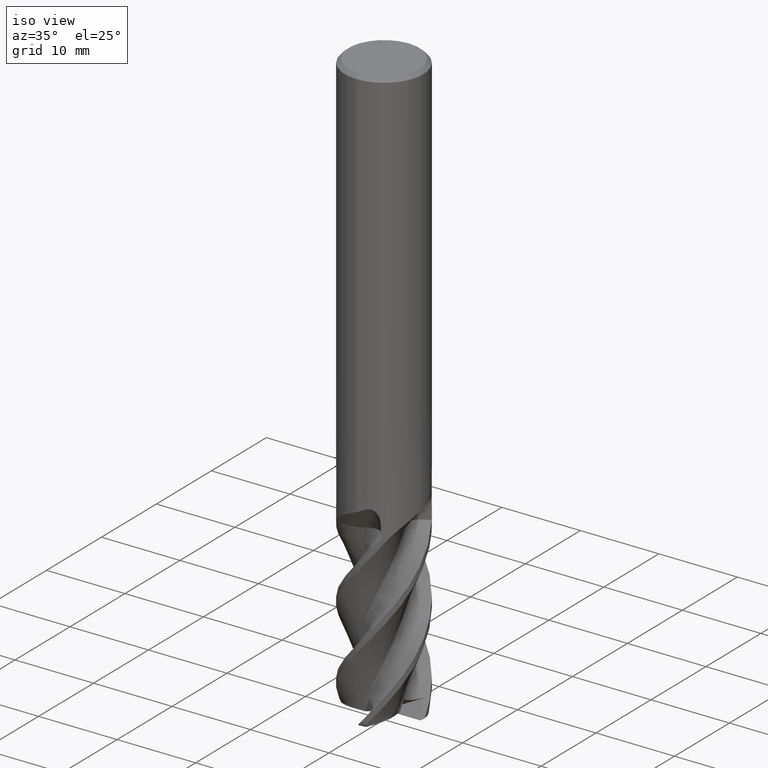
[diagram: clean part render]
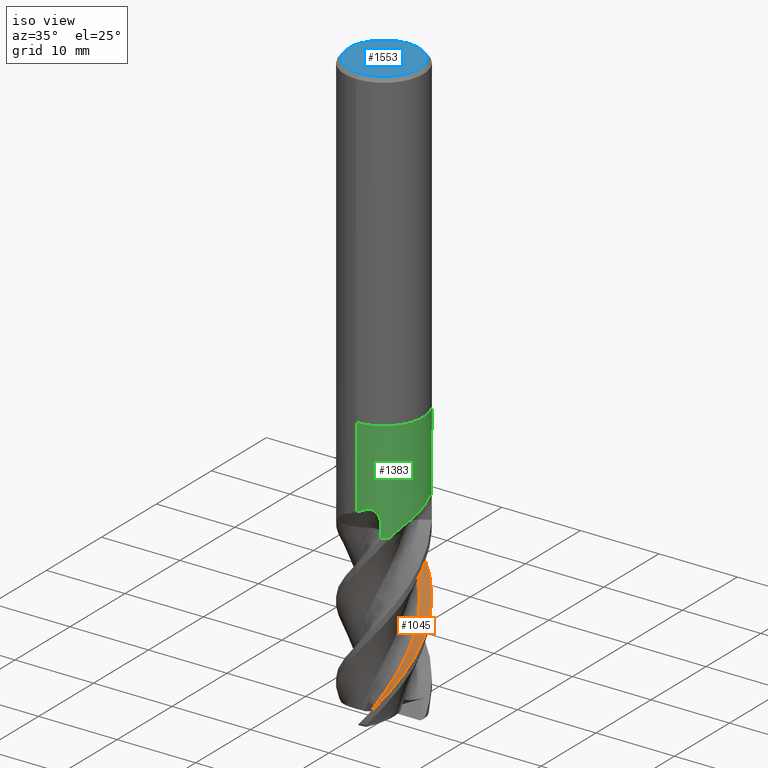
[diagram: same view with three faces highlighted in distinct colors, each labeled with its STEP entity id]
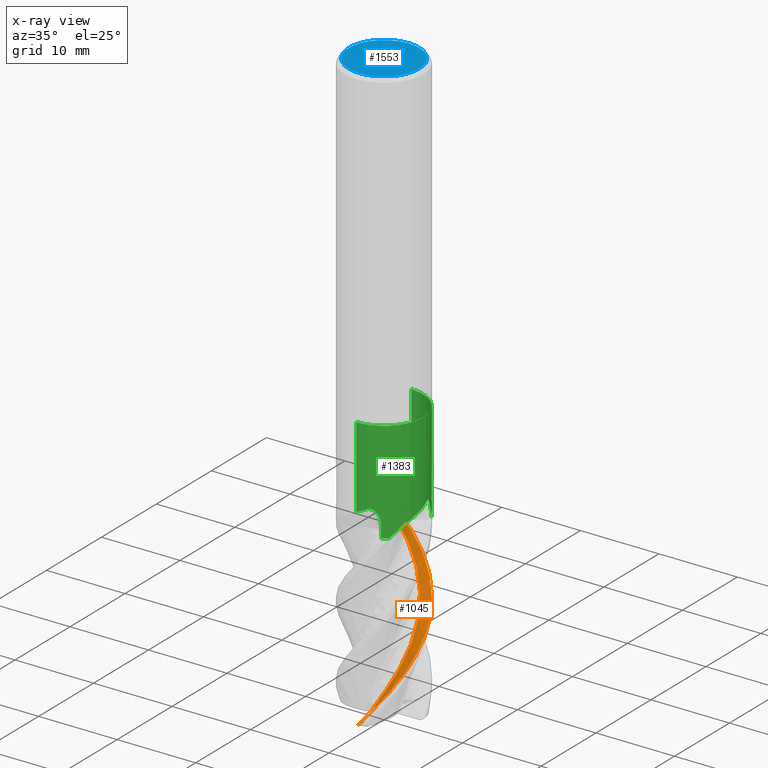
[diagram: x-ray of the same camera — body ghosted, the three highlighted faces saturated]
A machine part, iso view with three faces highlighted in distinct colors.
The next image is the same camera in x-ray (body ghosted, the three faces saturated) — at least one of them is partly hidden behind the body in this view.
Their STEP definitions:

[orange] entity #1045 — the highlighted face is a freeform B-spline surface patch.
#571=EDGE_CURVE('',#819,#1377,#1607,.T.);
#695=VERTEX_POINT('',#1743);
#805=EDGE_CURVE('',#1115,#1337,#1864,.T.);
#819=VERTEX_POINT('',#1879);
#1045=ADVANCED_FACE('',(#2122),#2123,.T.);
#1077=VERTEX_POINT('',#2157);
#1115=VERTEX_POINT('',#2200);
#1117=EDGE_CURVE('',#1077,#1227,#2202,.T.);
#1227=VERTEX_POINT('',#2323);
#1301=EDGE_CURVE('',#1377,#695,#2405,.T.);
#1335=EDGE_CURVE('',#1227,#1115,#2442,.T.);
#1337=VERTEX_POINT('',#2444);
#1345=EDGE_CURVE('',#695,#1077,#2453,.T.);
#1377=VERTEX_POINT('',#2490);
#1451=EDGE_CURVE('',#1337,#819,#2573,.T.);
#1607=B_SPLINE_CURVE_WITH_KNOTS('',3,(#2935,#2936,#2937,#2938,#2939,#2940,#2941,#2942,#2943,#2944,#2945,#2946,#2947,#2948,#2949,#2950,#2951,#2952,#2953,#2954,#2955,#2956,#2957,#2958,#2959,#2960,#2961,#2962),.UNSPECIFIED.,.F.,.F.,(4,2,2,2,2,2,2,2,2,2,2,2,2,4),(0.0,0.802464869928728,1.11938100992949,1.52797116992941,2.34566160782041,2.82971471964116,3.17506634876452,3.5338277225619,4.08483125597154,4.86498913264828,8.04766904622848,13.3982631118401,14.9423089234208,16.1421387048857),.UNSPECIFIED.);
#1743=CARTESIAN_POINT('',(1.09334985087204,-3.60114669389617,-73.2244277868559));
#1864=B_SPLINE_CURVE_WITH_KNOTS('',3,(#5759,#5760,#5761,#5762,#5763,#5764,#5765,#5766,#5767,#5768,#5769,#5770,#5771,#5772,#5773,#5774,#5775,#5776,#5777,#5778,#5779,#5780,#5781,#5782,#5783,#5784,#5785,#5786,#5787,#5788,#5789,#5790,#5791,#5792,#5793,#5794,#5795,#5796),.UNSPECIFIED.,.F.,.F.,(4,2,2,2,2,2,2,2,2,2,2,2,2,2,2,2,2,2,4),(0.0,1.53665826045563,3.87264489093354,5.42220092887918,6.57588778139974,7.14835599021829,8.50953464919352,10.1521016370915,11.1640692522027,12.2679027093545,13.4068357601413,14.533160918124,16.745752196556,18.2200064706984,19.9220789200724,21.1392875936082,22.6103454210462,24.0001062292641,28.0142336242659),.UNSPECIFIED.);
#1879=CARTESIAN_POINT('',(0.024141614388985,-4.70814144559675,-74.9545892313716));
#2122=FACE_OUTER_BOUND('',#7057,.T.);
#2123=B_SPLINE_SURFACE_WITH_KNOTS('',3,3,((#7058,#7059,#7060,#7061,#7062,#7063,#7064,#7065,#7066,#7067,#7068,#7069,#7070,#7071,#7072,#7073,#7074,#7075,#7076,#7077,#7078,#7079,#7080,#7081,#7082,#7083,#7084,#7085,#7086,#7087,#7088,#7089,#7090,#7091,#7092,#7093,#7094,#7095,#7096,#7097,#7098,#7099,#7100,#7101,#7102,#7103,#7104,#7105,#7106,#7107,#7108,#7109,#7110),(#7111,#7112,#7113,#7114,#7115,#7116,#7117,#7118,#7119,#7120,#7121,#7122,#7123,#7124,#7125,#7126,#7127,#7128,#7129,#7130,#7131,#7132,#7133,#7134,#7135,#7136,#7137,#7138,#7139,#7140,#7141,#7142,#7143,#7144,#7145,#7146,#7147,#7148,#7149,#7150,#7151,#7152,#7153,#7154,#7155,#7156,#7157,#7158,#7159,#7160,#7161,#7162,#7163),(#7164,#7165,#7166,#7167,#7168,#7169,#7170,#7171,#7172,#7173,#7174,#7175,#7176,#7177,#7178,#7179,#7180,#7181,#7182,#7183,#7184,#7185,#7186,#7187,#7188,#7189,#7190,#7191,#7192,#7193,#7194,#7195,#7196,#7197,#7198,#7199,#7200,#7201,#7202,#7203,#7204,#7205,#7206,#7207,#7208,#7209,#7210,#7211,#7212,#7213,#7214,#7215,#7216),(#7217,#7218,#7219,#7220,#7221,#7222,#7223,#7224,#7225,#7226,#7227,#7228,#7229,#7230,#7231,#7232,#7233,#7234,#7235,#7236,#7237,#7238,#7239,#7240,#7241,#7242,#7243,#7244,#7245,#7246,#7247,#7248,#7249,#7250,#7251,#7252,#7253,#7254,#7255,#7256,#7257,#7258,#7259,#7260,#7261,#7262,#7263,#7264,#7265,#7266,#7267,#7268,#7269)),.UNSPECIFIED.,.F.,.F.,.F.,(4,4),(4,1,2,1,2,1,2,1,2,1,2,1,2,1,2,1,2,1,2,1,2,1,2,1,2,1,2,1,2,1,2,1,2,1,4),(0.0,1.4375),(0.0,0.658549239123413,1.31709847824683,1.97564771737024,2.63419695649365,3.95129543474048,5.2683939129873,6.58549239123413,7.90259086948096,9.21968934772778,10.5367878259746,11.8538863042214,13.1709847824683,14.4880832607151,15.8051817389619,17.1222802172087,18.4393786954556,19.7564771737024,21.0735756519492,22.390674130196,23.7077726084429,25.0248710866897,26.3419695649365,27.6590680431833,28.9761665214302,30.293264999677,31.6103634779238,32.9274619561707,34.2445604344175,35.5616589126643,36.8787573909111,38.195855869158,39.5129543474048,40.8300528256516,42.1471513038984),.UNSPECIFIED.);
#2157=CARTESIAN_POINT('',(-1.96059927409612,3.21236791552506,-53.0));
#2200=CARTESIAN_POINT('',(-7.63272073956158E-010,4.99991520634825,-56.2693648741745));
#2202=B_SPLINE_CURVE_WITH_KNOTS('',3,(#7747,#7748,#7749,#7750,#7751,#7752),.UNSPECIFIED.,.F.,.F.,(4,2,4),(0.0,0.718749972684841,1.43749994537414),.UNSPECIFIED.);
#2323=CARTESIAN_POINT('',(-2.61261439095677,4.26300903754209,-53.0));
#2405=B_SPLINE_CURVE_WITH_KNOTS('',3,(#8956,#8957,#8958,#8959,#8960,#8961),.UNSPECIFIED.,.F.,.F.,(4,2,4),(0.0,0.752535492609384,1.51115268182924),.UNSPECIFIED.);
#2442=B_SPLINE_CURVE_WITH_KNOTS('',3,(#9046,#9047,#9048,#9049,#9050,#9051,#9052,#9053,#9054,#9055,#9056,#9057,#9058,#9059,#9060,#9061,#9062,#9063,#9064,#9065,#9066,#9067,#9068,#9069,#9070,#9071,#9072,#9073,#9074,#9075,#9076,#9077,#9078,#9079,#9080,#9081,#9082,#9083),.UNSPECIFIED.,.F.,.F.,(4,2,2,2,2,2,2,2,2,2,2,2,2,2,2,2,2,2,4),(0.0,1.53665826045563,3.87264489093354,5.42220092887918,6.57588778139974,7.14835599021829,8.50953464919352,10.1521016370915,11.1640692522027,12.2679027093545,13.4068357601413,14.533160918124,16.745752196556,18.2200064706984,19.9220789200724,21.1392875936082,22.6103454210462,24.0001062292641,28.0142336242659),.UNSPECIFIED.);
#2444=CARTESIAN_POINT('',(0.412223760012419,-4.98297818294253,-74.5));
#2453=B_SPLINE_CURVE_WITH_KNOTS('',3,(#9098,#9099,#9100,#9101,#9102,#9103,#9104,#9105,#9106,#9107,#9108,#9109,#9110,#9111,#9112,#9113,#9114,#9115,#9116,#9117,#9118,#9119,#9120,#9121,#9122,#9123,#9124,#9125,#9126,#9127,#9128,#9129,#9130,#9131,#9132,#9133,#9134,#9135,#9136,#9137,#9138,#9139,#9140,#9141,#9142,#9143,#9144,#9145,#9146,#9147,#9148,#9149,#9150),.UNSPECIFIED.,.F.,.F.,(4,1,2,1,2,1,2,1,2,1,2,1,2,1,2,1,2,1,2,1,2,1,2,1,2,1,2,1,2,1,2,1,2,1,4),(0.0,0.658549239123413,1.31709847824683,1.97564771737024,2.63419695649365,3.95129543474048,5.2683939129873,6.58549239123413,7.90259086948096,9.21968934772778,10.5367878259746,11.8538863042214,13.1709847824683,14.4880832607151,15.8051817389619,17.1222802172087,18.4393786954556,19.7564771737024,21.0735756519492,22.390674130196,23.7077726084429,25.0248710866897,26.3419695649365,27.6590680431833,28.9761665214302,30.293264999677,31.6103634779238,32.9274619561707,34.2445604344175,35.5616589126643,36.8787573909111,38.195855869158,39.5129543474048,40.8300528256516,42.1471513038984),.UNSPECIFIED.);
#2490=CARTESIAN_POINT('',(1.41002267526632,-4.17503026798834,-73.0449553888539));
#2573=B_SPLINE_CURVE_WITH_KNOTS('',3,(#10734,#10735,#10736,#10737,#10738,#10739,#10740,#10741,#10742,#10743,#10744,#10745,#10746,#10747,#10748,#10749,#10750,#10751),.UNSPECIFIED.,.F.,.F.,(4,2,2,2,2,2,2,2,4),(0.0,0.0174020930353364,0.0419531873788558,0.101700827697184,0.183222088222866,0.37615105162832,0.574353302947246,0.719854679735566,0.844578434641358),.UNSPECIFIED.);
#2935=CARTESIAN_POINT('',(-0.00472035842892563,-5.10275069122379,-74.9933713526036));
#2936=CARTESIAN_POINT('',(0.00535645009950015,-4.8357787814273,-74.9801636811999));
#2937=CARTESIAN_POINT('',(0.0206690984315288,-4.68668840237219,-74.9594327544668));
#2938=CARTESIAN_POINT('',(0.0585715148401548,-4.55182096468247,-74.9075159334549));
#2939=CARTESIAN_POINT('',(0.0715194129029534,-4.52045672959237,-74.8897426873791));
#2940=CARTESIAN_POINT('',(0.108306295393729,-4.45953595652643,-74.8391737042271));
#2941=CARTESIAN_POINT('',(0.134518612741419,-4.43265274517147,-74.8030984699196));
#2942=CARTESIAN_POINT('',(0.237225902721907,-4.36369734472078,-74.6616518093504));
#2943=CARTESIAN_POINT('',(0.335005147038249,-4.33522233674745,-74.5268962630077));
#2944=CARTESIAN_POINT('',(0.406076989153602,-4.31613947275755,-74.4289436615394));
#2945=CARTESIAN_POINT('',(0.433368397389877,-4.31033959019131,-74.3913261757435));
#2946=CARTESIAN_POINT('',(0.478758805701372,-4.30200500740753,-74.3287583086945));
#2947=CARTESIAN_POINT('',(0.497917030367789,-4.29888933415062,-74.3023488469668));
#2948=CARTESIAN_POINT('',(0.536469457662126,-4.29312937411834,-74.2492033173086));
#2949=CARTESIAN_POINT('',(0.556382653751952,-4.29042823475236,-74.2217517500489));
#2950=CARTESIAN_POINT('',(0.606154886667106,-4.28408798630442,-74.1531366029856));
#2951=CARTESIAN_POINT('',(0.637477813199322,-4.28049138500143,-74.1099543403774));
#2952=CARTESIAN_POINT('',(0.70949363215307,-4.27254685415256,-74.0106714021475));
#2953=CARTESIAN_POINT('',(0.751404849139457,-4.26819017044134,-73.9528907881337));
#2954=CARTESIAN_POINT('',(0.990124001773409,-4.24275370389677,-73.6237838535048));
#2955=CARTESIAN_POINT('',(1.12832757000791,-4.22626493635328,-73.4332559094142));
#2956=CARTESIAN_POINT('',(1.62650787680902,-4.13730486988278,-72.7465387292871));
#2957=CARTESIAN_POINT('',(1.92472707912048,-4.05494378321267,-72.3355330908659));
#2958=CARTESIAN_POINT('',(2.31403225659556,-3.90174346411444,-71.7991103988103));
#2959=CARTESIAN_POINT('',(2.4586612968122,-3.84288734792769,-71.5998313813132));
#2960=CARTESIAN_POINT('',(2.68228506577451,-3.74804418042606,-71.2917183299254));
#2961=CARTESIAN_POINT('',(2.7788381412528,-3.70559431006753,-71.1586895409081));
#2962=CARTESIAN_POINT('',(2.87588257191283,-3.6607514740224,-71.024989377869));
#5759=CARTESIAN_POINT('',(-2.61261439095677,4.2630090375421,-53.0));
#5760=CARTESIAN_POINT('',(-2.33165636246581,4.43519823574182,-53.3921507371286));
#5761=CARTESIAN_POINT('',(-2.03668507768344,4.57817058520221,-53.7713860965599));
#5762=CARTESIAN_POINT('',(-1.25696426025036,4.86521445046569,-54.7639852846721));
#5763=CARTESIAN_POINT('',(-0.761020258849193,4.96747725170689,-55.3732637028572));
#5764=CARTESIAN_POINT('',(0.0792577708990447,5.01053527213815,-56.3639769994125));
#5765=CARTESIAN_POINT('',(0.41681515809505,4.99411159389857,-56.761505621951));
#5766=CARTESIAN_POINT('',(1.00346835227384,4.90473242505584,-57.4745018414592));
#5767=CARTESIAN_POINT('',(1.25101359925282,4.84755287033153,-57.780078817511));
#5768=CARTESIAN_POINT('',(1.61388379256263,4.73397549203851,-58.2343456620856));
#5769=CARTESIAN_POINT('',(1.73319567871613,4.69163291706898,-58.3847751129417));
#5770=CARTESIAN_POINT('',(2.13177311338149,4.53277461343065,-58.8910384232557));
#5771=CARTESIAN_POINT('',(2.40158264162353,4.39597726921788,-59.2448257255492));
#5772=CARTESIAN_POINT('',(2.97120113550842,4.03814405305286,-60.0512856756961));
#5773=CARTESIAN_POINT('',(3.2610340046304,3.80812829038278,-60.4964422480917));
#5774=CARTESIAN_POINT('',(3.68518289571345,3.38684907947514,-61.2066987396964));
#5775=CARTESIAN_POINT('',(3.834175028123,3.21718688259587,-61.4688170431235));
#5776=CARTESIAN_POINT('',(4.12314214095255,2.8391452085361,-62.0329354376779));
#5777=CARTESIAN_POINT('',(4.25834408815773,2.63182582123811,-62.3295138871987));
#5778=CARTESIAN_POINT('',(4.50000326730141,2.19406316666077,-62.9309375386488));
#5779=CARTESIAN_POINT('',(4.60604942296498,1.96193431988415,-63.2372412091144));
#5780=CARTESIAN_POINT('',(4.78121425769737,1.48440423894692,-63.8418692664301));
#5781=CARTESIAN_POINT('',(4.84960938958754,1.24287033349411,-64.13295073194));
#5782=CARTESIAN_POINT('',(4.99877711190631,0.508383945602098,-65.0232624046795));
#5783=CARTESIAN_POINT('',(5.02457768218559,0.00966579170736898,-65.624853073573));
#5784=CARTESIAN_POINT('',(4.94429220866736,-0.814380199782096,-66.6077206293091));
#5785=CARTESIAN_POINT('',(4.88007473229703,-1.13775371544518,-66.9899840780349));
#5786=CARTESIAN_POINT('',(4.67216971873615,-1.82128906452946,-67.8451539720354));
#5787=CARTESIAN_POINT('',(4.51884643943845,-2.17426592021935,-68.3084068699948));
#5788=CARTESIAN_POINT('',(4.18838264770752,-2.7445823012463,-69.0925566712788));
#5789=CARTESIAN_POINT('',(4.03252605673041,-2.96884355878419,-69.4090164861885));
#5790=CARTESIAN_POINT('',(3.64637245516485,-3.43716322621835,-70.13112527989));
#5791=CARTESIAN_POINT('',(3.41061968908987,-3.67105507981146,-70.5305048620696));
#5792=CARTESIAN_POINT('',(2.91209205452974,-4.0763950041937,-71.3015618493022));
#5793=CARTESIAN_POINT('',(2.65462735749539,-4.24823165058976,-71.6651719416601));
#5794=CARTESIAN_POINT('',(1.60312627302862,-4.81866700943714,-73.0733893459933));
#5795=CARTESIAN_POINT('',(0.881506358171893,-4.94415355877029,-73.9488221503779));
#5796=CARTESIAN_POINT('',(0.412223760012399,-4.98297818294253,-74.5));
#7057=EDGE_LOOP('',(#11690,#11691,#11692,#11693,#11694,#11695,#11696));
#7058=CARTESIAN_POINT('',(-3.75846504509034,0.174203199838718,-85.0));
#7059=CARTESIAN_POINT('',(-3.75922417421834,0.180367674065086,-84.781257534348));
#7060=CARTESIAN_POINT('',(-3.76659625728186,0.101343983606238,-84.3437017067897));
#7061=CARTESIAN_POINT('',(-3.76514038195602,-0.166872443605937,-83.9061227876956));
#7062=CARTESIAN_POINT('',(-3.73059290486704,-0.525748748428011,-83.4686790293266));
#7063=CARTESIAN_POINT('',(-3.67418562139574,-0.853419521970376,-83.0312599785651));
#7064=CARTESIAN_POINT('',(-3.59371181485703,-1.12390867607199,-82.5937922235727));
#7065=CARTESIAN_POINT('',(-3.46384525794051,-1.4950883686463,-81.9374991454801));
#7066=CARTESIAN_POINT('',(-3.23939255563683,-1.97184736336328,-81.0624396209969));
#7067=CARTESIAN_POINT('',(-2.90400512147148,-2.41104012653563,-80.1874068062779));
#7068=CARTESIAN_POINT('',(-2.50649264273974,-2.82167058894835,-79.3124420205515));
#7069=CARTESIAN_POINT('',(-2.07729339401847,-3.17357801084494,-78.4374849235529));
#7070=CARTESIAN_POINT('',(-1.58763876126148,-3.42370937664237,-77.5624771201042));
#7071=CARTESIAN_POINT('',(-1.06179339490174,-3.62139719687097,-76.6874636115176));
#7072=CARTESIAN_POINT('',(-0.528045233448861,-3.75603481942354,-75.812465434062));
#7073=CARTESIAN_POINT('',(0.0227563813656532,-3.77389672882558,-74.9374521777107));
#7074=CARTESIAN_POINT('',(0.583877475829847,-3.72844242989575,-74.0624554440398));
#7075=CARTESIAN_POINT('',(1.12416091123712,-3.62250415170346,-73.1874694992783));
#7076=CARTESIAN_POINT('',(1.6296094558791,-3.40400478488374,-72.3124569222773));
#7077=CARTESIAN_POINT('',(2.11788147378342,-3.12358907735593,-71.4374554871685));
#7078=CARTESIAN_POINT('',(2.56162684897544,-2.79723400781252,-70.5624665057969));
#7079=CARTESIAN_POINT('',(2.92567780542057,-2.38395213516687,-69.6874539774133));
#7080=CARTESIAN_POINT('',(3.24765439714162,-1.92222254599876,-68.8124536161666));
#7081=CARTESIAN_POINT('',(3.50980338631336,-1.43794004700814,-67.9374652209009));
#7082=CARTESIAN_POINT('',(3.66288554473263,-0.908908693690412,-67.0624526373256));
#7083=CARTESIAN_POINT('',(3.7572548754571,-0.353901504644488,-66.1874521349676));
#7084=CARTESIAN_POINT('',(3.78787536080733,0.195986430818265,-65.3124636790001));
#7085=CARTESIAN_POINT('',(3.70074520136158,0.739810773490634,-64.4374510978889));
#7086=CARTESIAN_POINT('',(3.54943330717654,1.28207916648504,-63.5624505838951));
#7087=CARTESIAN_POINT('',(3.34264164734698,1.79252633150535,-62.6874621329593));
#7088=CARTESIAN_POINT('',(3.03193515617853,2.24726530466125,-61.812449551569));
#7089=CARTESIAN_POINT('',(2.66384433904996,2.67322628119352,-60.9374490151771));
#7090=CARTESIAN_POINT('',(2.25913979001121,3.04675106383931,-60.0624605524643));
#7091=CARTESIAN_POINT('',(1.7841972408782,3.32557940568417,-59.1874479820501));
#7092=CARTESIAN_POINT('',(1.26962301403457,3.55390890141466,-58.3124474617861));
#7093=CARTESIAN_POINT('',(0.744294017262821,3.71919688364569,-57.4374589866491));
#7094=CARTESIAN_POINT('',(0.195814907548146,3.76888495198788,-56.5624463791087));
#7095=CARTESIAN_POINT('',(-0.3669814263455,3.75599902672818,-55.6874458281175));
#7096=CARTESIAN_POINT('',(-0.912657474333065,3.68150497458839,-54.8124574190731));
#7097=CARTESIAN_POINT('',(-1.43001184013111,3.49254974209404,-53.9374450757006));
#7098=CARTESIAN_POINT('',(-1.93362453146801,3.24088011025482,-53.062444859215));
#7099=CARTESIAN_POINT('',(-2.39540700204253,2.94081705330688,-52.1874561530901));
#7100=CARTESIAN_POINT('',(-2.78278411138902,2.54930803172176,-51.3124425858655));
#7101=CARTESIAN_POINT('',(-3.13104106316721,2.10684892960255,-50.4374410272082));
#7102=CARTESIAN_POINT('',(-3.42082265908543,1.63839330800024,-49.5624537630285));
#7103=CARTESIAN_POINT('',(-3.60409016620524,1.11945713391387,-48.6874443570381));
#7104=CARTESIAN_POINT('',(-3.73030487993103,0.571684806413347,-47.8124462662842));
#7105=CARTESIAN_POINT('',(-3.79294591409001,0.0247414561718516,-46.93745257227));
#7106=CARTESIAN_POINT('',(-3.737295678972,-0.525697689521288,-46.0624311257765));
#7107=CARTESIAN_POINT('',(-3.61626740834633,-1.07977270751138,-45.1874270825496));
#7108=CARTESIAN_POINT('',(-3.43806007054787,-1.60075189270756,-44.312455744063));
#7109=CARTESIAN_POINT('',(-3.15984968324221,-2.06271643304369,-43.4374654493909));
#7110=CARTESIAN_POINT('',(-2.99429631359394,-2.27997981095106,-42.9999677084396));
#7111=CARTESIAN_POINT('',(-4.23711784707065,0.19638854644076,-85.0));
#7112=CARTESIAN_POINT('',(-4.23794062249673,0.201179436900481,-84.7812578435563));
#7113=CARTESIAN_POINT('',(-4.2460803331588,0.109138485951662,-84.3436956172635));
#7114=CARTESIAN_POINT('',(-4.24409664395781,-0.193327536128675,-83.9061084096885));
#7115=CARTESIAN_POINT('',(-4.20501621095374,-0.596608487421843,-83.4686713030371));
#7116=CARTESIAN_POINT('',(-4.14133336875902,-0.965139550146092,-83.0312614327978));
#7117=CARTESIAN_POINT('',(-4.05039477232848,-1.2699353405888,-82.593797188511));
#7118=CARTESIAN_POINT('',(-3.90350369126888,-1.68855678255918,-81.9374991356436));
#7119=CARTESIAN_POINT('',(-3.64979057359648,-2.22617465845186,-81.0624329669593));
#7120=CARTESIAN_POINT('',(-3.27124082255499,-2.72096248702242,-80.1873966213073));
#7121=CARTESIAN_POINT('',(-2.8229456855589,-3.18329307355221,-79.3124359088237));
#7122=CARTESIAN_POINT('',(-2.33876520563161,-3.57961531433789,-78.4374836863296));
#7123=CARTESIAN_POINT('',(-1.78643198263717,-3.86115252371355,-77.5624750778767));
#7124=CARTESIAN_POINT('',(-1.19357490180921,-4.08346676609695,-76.6874600371529));
#7125=CARTESIAN_POINT('',(-0.591661945200606,-4.23475933658083,-75.8124621678272));
#7126=CARTESIAN_POINT('',(0.0293539718017339,-4.25435091386449,-74.9374474585254));
#7127=CARTESIAN_POINT('',(0.661717076025444,-4.20259451894905,-74.0624511732849));
#7128=CARTESIAN_POINT('',(1.27076776870874,-4.08264084143962,-73.1874668415858));
#7129=CARTESIAN_POINT('',(1.8404244927543,-3.83578859567452,-72.3124529454844));
#7130=CARTESIAN_POINT('',(2.39046290166253,-3.5192897894259,-71.4374513608987));
#7131=CARTESIAN_POINT('',(2.89045843706128,-3.15091750442883,-70.5624636868881));
#7132=CARTESIAN_POINT('',(3.30049999199704,-2.68459799854828,-69.6874498669029));
#7133=CARTESIAN_POINT('',(3.66294730107358,-2.16390584601138,-68.8124494309178));
#7134=CARTESIAN_POINT('',(3.95805169971144,-1.61764685365583,-67.937462467379));
#7135=CARTESIAN_POINT('',(4.13011976055933,-1.0210337795758,-67.0624485052054));
#7136=CARTESIAN_POINT('',(4.23595604554261,-0.395428699556982,-66.1874480028474));
#7137=CARTESIAN_POINT('',(4.26995842287849,0.224577754726014,-65.3124608663496));
#7138=CARTESIAN_POINT('',(4.17118252300016,0.837630242419503,-64.4374470411454));
#7139=CARTESIAN_POINT('',(4.00013774215616,1.44864699290281,-63.5624463776748));
#7140=CARTESIAN_POINT('',(3.76650454704363,2.02396048706889,-62.6874593962856));
#7141=CARTESIAN_POINT('',(3.41574414228388,2.53635097742908,-61.8124454193211));
#7142=CARTESIAN_POINT('',(3.0004897367626,3.01608068355262,-60.9374448829292));
#7143=CARTESIAN_POINT('',(2.54384700627362,3.43683211333534,-60.0624577728718));
#7144=CARTESIAN_POINT('',(2.00809197730894,3.75072755584757,-59.1874438486276));
#7145=CARTESIAN_POINT('',(1.42793033979699,4.0075806197935,-58.3124433283636));
#7146=CARTESIAN_POINT('',(0.835485250934674,4.19343877987961,-57.4374562107932));
#7147=CARTESIAN_POINT('',(0.217048263522084,4.24891507095894,-56.5624422380938));
#7148=CARTESIAN_POINT('',(-0.417235052790672,4.23386274405219,-55.6874416871025));
#7149=CARTESIAN_POINT('',(-1.0323931120071,4.14935657166442,-54.8124546158436));
#7150=CARTESIAN_POINT('',(-1.61550042548027,3.93580356847772,-53.9374409812958));
#7151=CARTESIAN_POINT('',(-2.18285611535051,3.65168784615569,-53.0624407648102));
#7152=CARTESIAN_POINT('',(-2.70321437719236,3.31294038170613,-52.1874534856649));
#7153=CARTESIAN_POINT('',(-3.13957659328799,2.87114554906663,-51.3124383108592));
#7154=CARTESIAN_POINT('',(-3.53165951786123,2.37214976973516,-50.4374367522019));
#7155=CARTESIAN_POINT('',(-3.85793231182018,1.84371186418283,-49.5624508019605));
#7156=CARTESIAN_POINT('',(-4.06404546948231,1.25844502955053,-48.6874403647514));
#7157=CARTESIAN_POINT('',(-4.20578176555097,0.640950116489492,-47.8124428719048));
#7158=CARTESIAN_POINT('',(-4.2758874277425,0.0242270735210278,-46.9374501805367));
#7159=CARTESIAN_POINT('',(-4.21260100126799,-0.596276659307185,-46.0624264540729));
#7160=CARTESIAN_POINT('',(-4.07569431057026,-1.22056650350317,-45.1874215139853));
#7161=CARTESIAN_POINT('',(-3.87428815248698,-1.80778168303909,-44.3124525798971));
#7162=CARTESIAN_POINT('',(-3.56006622923984,-2.32849820347486,-43.4374619688278));
#7163=CARTESIAN_POINT('',(-3.3731948992297,-2.57329969816187,-42.9999640783996));
#7164=CARTESIAN_POINT('',(-4.71577064904156,0.218573893042167,-85.0));
#7165=CARTESIAN_POINT('',(-4.71665710542029,0.221991200888954,-84.7812581528398));
#7166=CARTESIAN_POINT('',(-4.72556437008339,0.116932987910637,-84.3436895270494));
#7167=CARTESIAN_POINT('',(-4.72305294918176,-0.219782629035817,-83.9060940329823));
#7168=CARTESIAN_POINT('',(-4.67943947383023,-0.667468226029499,-83.4686635754493));
#7169=CARTESIAN_POINT('',(-4.60848114161627,-1.07685957801723,-83.0312628963867));
#7170=CARTESIAN_POINT('',(-4.50707772205947,-1.41596200609556,-82.5938021360351));
#7171=CARTESIAN_POINT('',(-4.34316214009191,-1.88202519449378,-81.9374991606195));
#7172=CARTESIAN_POINT('',(-4.06018856313164,-2.48050197044054,-81.0624262955416));
#7173=CARTESIAN_POINT('',(-3.63847656498833,-3.03088481570123,-80.1873864362814));
#7174=CARTESIAN_POINT('',(-3.13939868704092,-3.54491558996265,-79.3124297971499));
#7175=CARTESIAN_POINT('',(-2.60023703835065,-3.98565261755892,-78.4374824728006));
#7176=CARTESIAN_POINT('',(-1.98522520314841,-4.29859563953612,-77.5624729882229));
#7177=CARTESIAN_POINT('',(-1.32535640958074,-4.5455363665491,-76.6874565102081));
#7178=CARTESIAN_POINT('',(-0.655278656858653,-4.713483817499,-75.8124588822478));
#7179=CARTESIAN_POINT('',(0.0359515629158194,-4.73480514017841,-74.9374427305751));
#7180=CARTESIAN_POINT('',(0.73955667554605,-4.67674656672546,-74.0624469112759));
#7181=CARTESIAN_POINT('',(1.41737461558806,-4.54277754138188,-73.1874642134127));
#7182=CARTESIAN_POINT('',(2.05123955147943,-4.26757242732512,-72.3124489009334));
#7183=CARTESIAN_POINT('',(2.663044307699,-3.91499048063375,-71.4374473023827));
#7184=CARTESIAN_POINT('',(3.21929005200539,-3.50460100039336,-70.5624608661335));
#7185=CARTESIAN_POINT('',(3.67532214672753,-2.9852438840832,-69.6874456923335));
#7186=CARTESIAN_POINT('',(4.07824023683639,-2.40558912387084,-68.8124453097233));
#7187=CARTESIAN_POINT('',(4.40629998335957,-1.79735367144124,-67.9374596829612));
#7188=CARTESIAN_POINT('',(4.59735400403595,-1.13315886534592,-67.0624443707648));
#7189=CARTESIAN_POINT('',(4.71465718796931,-0.436955894582885,-66.1874438730549));
#7190=CARTESIAN_POINT('',(4.7520415110836,0.2531690750204,-65.3124581275866));
#7191=CARTESIAN_POINT('',(4.64161981998213,0.935449718694701,-64.4374428342929));
#7192=CARTESIAN_POINT('',(4.45084220176414,1.615214811977,-63.5624423215157));
#7193=CARTESIAN_POINT('',(4.19036743825421,2.25539466141075,-62.6874565827271));
#7194=CARTESIAN_POINT('',(3.79955312071874,2.82543661998535,-61.8124412907487));
#7195=CARTESIAN_POINT('',(3.33713514214326,3.35893511611539,-60.9374407470571));
#7196=CARTESIAN_POINT('',(2.82855422186682,3.82691310948881,-60.0624550329025));
#7197=CARTESIAN_POINT('',(2.23198670739556,4.17587578248988,-59.1874396396444));
#7198=CARTESIAN_POINT('',(1.58623767190163,4.46125226172859,-58.3124392704482));
#7199=CARTESIAN_POINT('',(0.926676485861541,4.66768072805053,-57.4374533917498));
#7200=CARTESIAN_POINT('',(0.238281610642867,4.72894516248995,-56.5624381078856));
#7201=CARTESIAN_POINT('',(-0.467488670384231,4.71172648881444,-55.6874375352761));
#7202=CARTESIAN_POINT('',(-1.15212879513545,4.61720813291981,-54.8124518527989));
#7203=CARTESIAN_POINT('',(-1.80098892877361,4.37905743907337,-53.9374368172926));
#7204=CARTESIAN_POINT('',(-2.43208778126512,4.06249553786015,-53.0624367399999));
#7205=CARTESIAN_POINT('',(-3.01102170610632,3.68506372565636,-52.1874507354319));
#7206=CARTESIAN_POINT('',(-3.49636908561116,3.19298307953199,-51.3124341321074));
#7207=CARTESIAN_POINT('',(-3.93227796214917,2.63745059675622,-50.4374323809552));
#7208=CARTESIAN_POINT('',(-4.29504195661952,2.0490304261184,-49.5624478608188));
#7209=CARTESIAN_POINT('',(-4.52400079902545,1.39743292679838,-48.6874364288002));
#7210=CARTESIAN_POINT('',(-4.68125862491925,0.710215424953804,-47.8124394212254));
#7211=CARTESIAN_POINT('',(-4.75882894563135,0.0237126869621077,-46.9374478389429));
#7212=CARTESIAN_POINT('',(-4.68790634141072,-0.666855619666438,-46.0624217381713));
#7213=CARTESIAN_POINT('',(-4.53512119495504,-1.36136030891957,-45.1874159896299));
#7214=CARTESIAN_POINT('',(-4.31051626652866,-2.01481147440483,-44.3124492866954));
#7215=CARTESIAN_POINT('',(-3.96028272887087,-2.59427996242444,-43.4374587021844));
#7216=CARTESIAN_POINT('',(-3.75209348486642,-2.86661958537718,-42.9999604483638));
#7217=CARTESIAN_POINT('',(-5.19442345102187,0.240759239644209,-85.0));
#7218=CARTESIAN_POINT('',(-5.19537357236324,0.242802964589444,-84.7812584619751));
#7219=CARTESIAN_POINT('',(-5.20504841335141,0.124727487575611,-84.3436834398954));
#7220=CARTESIAN_POINT('',(-5.20200925773682,-0.246237717062749,-83.9060796503041));
#7221=CARTESIAN_POINT('',(-5.15386273336366,-0.738327969519137,-83.468655853831));
#7222=CARTESIAN_POINT('',(-5.07562891458925,-1.1885796038369,-83.0312643482838));
#7223=CARTESIAN_POINT('',(-4.96376067486477,-1.56198867082865,-82.5938071009735));
#7224=CARTESIAN_POINT('',(-4.78282058275257,-2.0754936079741,-81.937499150783));
#7225=CARTESIAN_POINT('',(-4.47058658022619,-2.73482924686456,-81.062419641504));
#7226=CARTESIAN_POINT('',(-4.00571225846975,-3.3408072139497,-80.1873762513108));
#7227=CARTESIAN_POINT('',(-3.45585173746216,-3.90653803680484,-79.3124236854221));
#7228=CARTESIAN_POINT('',(-2.86170884616274,-4.3916899399327,-78.4374812542619));
#7229=CARTESIAN_POINT('',(-2.1840184245241,-4.7360387866073,-77.5624709086262));
#7230=CARTESIAN_POINT('',(-1.45713791648821,-5.00760593577507,-76.6874529732126));
#7231=CARTESIAN_POINT('',(-0.718895363511709,-5.19220832554029,-75.8124555786438));
#7232=CARTESIAN_POINT('',(0.0425491431545244,-5.21525934344934,-74.937438048759));
#7233=CARTESIAN_POINT('',(0.817396285939022,-5.15089863754674,-74.0624426031518));
#7234=CARTESIAN_POINT('',(1.56398147815837,-5.00291422200203,-73.1874615744047));
#7235=CARTESIAN_POINT('',(2.26205456795988,-4.69935627457992,-72.3124449241404));
#7236=CARTESIAN_POINT('',(2.93562575597286,-4.31069115623968,-71.437443176113));
#7237=CARTESIAN_POINT('',(3.54812163477627,-3.85828451079182,-70.5624580845939));
#7238=CARTESIAN_POINT('',(4.05014432353917,-3.28588975636434,-69.6874415070847));
#7239=CARTESIAN_POINT('',(4.49353315053317,-2.64727241498372,-68.8124411992129));
#7240=CARTESIAN_POINT('',(4.85454826401357,-1.97706047832482,-67.9374568920702));
#7241=CARTESIAN_POINT('',(5.064588275586,-1.24528395965927,-67.0624402386446));
#7242=CARTESIAN_POINT('',(5.19335830233148,-0.47848308106742,-66.1874397409347));
#7243=CARTESIAN_POINT('',(5.23412460069201,0.281760387714959,-65.3124553523053));
#7244=CARTESIAN_POINT('',(5.11205714226952,1.03326920162199,-64.4374387028111));
#7245=CARTESIAN_POINT('',(4.90154663609494,1.78178262439635,-63.5624381900339));
#7246=CARTESIAN_POINT('',(4.61423033827528,2.4868288239735,-62.6874538086842));
#7247=CARTESIAN_POINT('',(4.18336210682409,3.11452229275318,-61.8124371585008));
#7248=CARTESIAN_POINT('',(3.6737805398559,3.70178951847449,-60.9374366148092));
#7249=CARTESIAN_POINT('',(3.11326143454446,4.21699418253181,-60.0624522159408));
#7250=CARTESIAN_POINT('',(2.45588145099586,4.60102388555933,-59.1874355809603));
#7251=CARTESIAN_POINT('',(1.74454499049451,4.91492402720139,-58.3124350622873));
#7252=CARTESIAN_POINT('',(1.01786772938339,5.14192260979942,-57.4374506532631));
#7253=CARTESIAN_POINT('',(0.259514954086359,5.20897526333713,-56.5624339668706));
#7254=CARTESIAN_POINT('',(-0.517742284298957,5.18959022426233,-55.6874333942611));
#7255=CARTESIAN_POINT('',(-1.27186443864215,5.08505973026619,-54.8124490495694));
#7256=CARTESIAN_POINT('',(-1.98647751498786,4.82231124679249,-53.9374327228878));
#7257=CARTESIAN_POINT('',(-2.68131936428253,4.47330329242558,-53.0624326455951));
#7258=CARTESIAN_POINT('',(-3.31882908613857,4.05718704960574,-52.1874479932683));
#7259=CARTESIAN_POINT('',(-3.8531615586104,3.51482058711203,-51.3124300065779));
#7260=CARTESIAN_POINT('',(-4.33289642574292,2.90275144665366,-50.4374279564722));
#7261=CARTESIAN_POINT('',(-4.73215160495847,2.25434897625204,-49.5624448997509));
#7262=CARTESIAN_POINT('',(-4.98395610219438,1.53642082476811,-48.6874325859904));
#7263=CARTESIAN_POINT('',(-5.15673551064733,0.77948073269688,-47.8124358773692));
#7264=CARTESIAN_POINT('',(-5.24177044989749,0.0231983050452721,-46.937445521948));
#7265=CARTESIAN_POINT('',(-5.16321168237127,-0.73743458858724,-46.0624170664677));
#7266=CARTESIAN_POINT('',(-4.99454807851441,-1.50215410577645,-45.1874104210655));
#7267=CARTESIAN_POINT('',(-4.74674435313391,-2.22184126452008,-44.3124460477911));
#7268=CARTESIAN_POINT('',(-4.36049928420078,-2.86006173242307,-43.4374553710981));
#7269=CARTESIAN_POINT('',(-4.13099207050219,-3.15993947258799,-42.9999568183239));
#7747=CARTESIAN_POINT('',(-1.96059927418109,3.21236791547233,-53.0));
#7748=CARTESIAN_POINT('',(-2.08693199821651,3.41593660679313,-53.0));
#7749=CARTESIAN_POINT('',(-2.21326452617912,3.61950541979492,-53.0));
#7750=CARTESIAN_POINT('',(-2.46592918995726,4.02664328916154,-53.0));
#7751=CARTESIAN_POINT('',(-2.59226132577292,4.23021234552656,-53.0));
#7752=CARTESIAN_POINT('',(-2.71859326551368,4.43378152357256,-53.0));
#8956=CARTESIAN_POINT('',(1.82647113006644,-4.86968545126579,-72.8517862736508));
#8957=CARTESIAN_POINT('',(1.69693642428026,-4.66182979027615,-72.9060087836954));
#8958=CARTESIAN_POINT('',(1.57051816494236,-4.45224783282724,-72.9637274860416));
#8959=CARTESIAN_POINT('',(1.32564573644428,-4.02972978235278,-73.0873448002761));
#8960=CARTESIAN_POINT('',(1.20671533063079,-3.81583400111615,-73.1535822818884));
#8961=CARTESIAN_POINT('',(1.09334985093284,-3.60114669387691,-73.2244277869138));
#9046=CARTESIAN_POINT('',(-2.61261439095677,4.2630090375421,-53.0));
#9047=CARTESIAN_POINT('',(-2.33165636246581,4.43519823574182,-53.3921507371286));
#9048=CARTESIAN_POINT('',(-2.03668507768344,4.57817058520221,-53.7713860965599));
#9049=CARTESIAN_POINT('',(-1.25696426025036,4.86521445046569,-54.7639852846721));
#9050=CARTESIAN_POINT('',(-0.761020258849193,4.96747725170689,-55.3732637028572));
#9051=CARTESIAN_POINT('',(0.0792577708990447,5.01053527213815,-56.3639769994125));
#9052=CARTESIAN_POINT('',(0.41681515809505,4.99411159389857,-56.761505621951));
#9053=CARTESIAN_POINT('',(1.00346835227384,4.90473242505584,-57.4745018414592));
#9054=CARTESIAN_POINT('',(1.25101359925282,4.84755287033153,-57.780078817511));
#9055=CARTESIAN_POINT('',(1.61388379256263,4.73397549203851,-58.2343456620856));
#9056=CARTESIAN_POINT('',(1.73319567871613,4.69163291706898,-58.3847751129417));
#9057=CARTESIAN_POINT('',(2.13177311338149,4.53277461343065,-58.8910384232557));
#9058=CARTESIAN_POINT('',(2.40158264162353,4.39597726921788,-59.2448257255492));
#9059=CARTESIAN_POINT('',(2.97120113550842,4.03814405305286,-60.0512856756961));
#9060=CARTESIAN_POINT('',(3.2610340046304,3.80812829038278,-60.4964422480917));
#9061=CARTESIAN_POINT('',(3.68518289571345,3.38684907947514,-61.2066987396964));
#9062=CARTESIAN_POINT('',(3.834175028123,3.21718688259587,-61.4688170431235));
#9063=CARTESIAN_POINT('',(4.12314214095255,2.8391452085361,-62.0329354376779));
#9064=CARTESIAN_POINT('',(4.25834408815773,2.63182582123811,-62.3295138871987));
#9065=CARTESIAN_POINT('',(4.50000326730141,2.19406316666077,-62.9309375386488));
#9066=CARTESIAN_POINT('',(4.60604942296498,1.96193431988415,-63.2372412091144));
#9067=CARTESIAN_POINT('',(4.78121425769737,1.48440423894692,-63.8418692664301));
#9068=CARTESIAN_POINT('',(4.84960938958754,1.24287033349411,-64.13295073194));
#9069=CARTESIAN_POINT('',(4.99877711190631,0.508383945602098,-65.0232624046795));
#9070=CARTESIAN_POINT('',(5.02457768218559,0.00966579170736898,-65.624853073573));
#9071=CARTESIAN_POINT('',(4.94429220866736,-0.814380199782096,-66.6077206293091));
#9072=CARTESIAN_POINT('',(4.88007473229703,-1.13775371544518,-66.9899840780349));
#9073=CARTESIAN_POINT('',(4.67216971873615,-1.82128906452946,-67.8451539720354));
#9074=CARTESIAN_POINT('',(4.51884643943845,-2.17426592021935,-68.3084068699948));
#9075=CARTESIAN_POINT('',(4.18838264770752,-2.7445823012463,-69.0925566712788));
#9076=CARTESIAN_POINT('',(4.03252605673041,-2.96884355878419,-69.4090164861885));
#9077=CARTESIAN_POINT('',(3.64637245516485,-3.43716322621835,-70.13112527989));
#9078=CARTESIAN_POINT('',(3.41061968908987,-3.67105507981146,-70.5305048620696));
#9079=CARTESIAN_POINT('',(2.91209205452974,-4.0763950041937,-71.3015618493022));
#9080=CARTESIAN_POINT('',(2.65462735749539,-4.24823165058976,-71.6651719416601));
#9081=CARTESIAN_POINT('',(1.60312627302862,-4.81866700943714,-73.0733893459933));
#9082=CARTESIAN_POINT('',(0.881506358171893,-4.94415355877029,-73.9488221503779));
#9083=CARTESIAN_POINT('',(0.412223760012399,-4.98297818294253,-74.5));
#9098=CARTESIAN_POINT('',(-3.75846504508571,0.174203199938611,-85.0));
#9099=CARTESIAN_POINT('',(-3.75922417421371,0.180367674164918,-84.781257534348));
#9100=CARTESIAN_POINT('',(-3.76659625728198,0.101343983706272,-84.3437017067897));
#9101=CARTESIAN_POINT('',(-3.76514038195834,-0.166872443505842,-83.9061227876956));
#9102=CARTESIAN_POINT('',(-3.73059290488503,-0.525748748329141,-83.4686790293266));
#9103=CARTESIAN_POINT('',(-3.67418562141778,-0.853419521872618,-83.0312599785647));
#9104=CARTESIAN_POINT('',(-3.59371181488687,-1.12390867597708,-82.5937922235737));
#9105=CARTESIAN_POINT('',(-3.46384525798217,-1.49508836855377,-81.9374991454781));
#9106=CARTESIAN_POINT('',(-3.2393925556906,-1.97184736327811,-81.0624396209978));
#9107=CARTESIAN_POINT('',(-2.90400512153349,-2.4110401264588,-80.1874068062779));
#9108=CARTESIAN_POINT('',(-2.50649264281788,-2.82167058888249,-79.3124420205515));
#9109=CARTESIAN_POINT('',(-2.07729339410272,-3.17357801079059,-78.4374849235509));
#9110=CARTESIAN_POINT('',(-1.58763876135109,-3.42370937660027,-77.5624771201081));
#9111=CARTESIAN_POINT('',(-1.06179339499986,-3.62139719684409,-76.6874636115137));
#9112=CARTESIAN_POINT('',(-0.528045233548038,-3.7560348194121,-75.812465434064));
#9113=CARTESIAN_POINT('',(0.02275638126561,-3.77389672882266,-74.9374521777107));
#9114=CARTESIAN_POINT('',(0.583877475730668,-3.72844242991629,-74.0624554440398));
#9115=CARTESIAN_POINT('',(1.12416091114104,-3.62250415173364,-73.1874694992744));
#9116=CARTESIAN_POINT('',(1.62960945578931,-3.40400478492427,-72.3124569222851));
#9117=CARTESIAN_POINT('',(2.11788147370052,-3.12358907741629,-71.4374554871606));
#9118=CARTESIAN_POINT('',(2.56162684890057,-2.79723400787934,-70.5624665057969));
#9119=CARTESIAN_POINT('',(2.92567780536026,-2.38395213524524,-69.6874539774211));
#9120=CARTESIAN_POINT('',(3.24765439708875,-1.92222254608529,-68.8124536161588));
#9121=CARTESIAN_POINT('',(3.50980338627726,-1.43794004710195,-67.9374652209048));
#9122=CARTESIAN_POINT('',(3.66288554470886,-0.908908693787539,-67.0624526373256));
#9123=CARTESIAN_POINT('',(3.7572548754488,-0.353901504744772,-66.1874521349676));
#9124=CARTESIAN_POINT('',(3.78787536081154,0.195986430718189,-65.3124636789923));
#9125=CARTESIAN_POINT('',(3.70074520138514,0.739810773391773,-64.4374510979044));
#9126=CARTESIAN_POINT('',(3.54943330720816,1.28207916639166,-63.5624505838795));
#9127=CARTESIAN_POINT('',(3.34264164739798,1.79252633141488,-62.6874621329671));
#9128=CARTESIAN_POINT('',(3.03193515623659,2.24726530458449,-61.812449551569));
#9129=CARTESIAN_POINT('',(2.66384433912378,2.67322628111993,-60.9374490151771));
#9130=CARTESIAN_POINT('',(2.25913979009173,3.04675106378391,-60.0624605524643));
#9131=CARTESIAN_POINT('',(1.78419724096644,3.32557940563273,-59.1874479820501));
#9132=CARTESIAN_POINT('',(1.26962301412973,3.55390890138633,-58.3124474617861));
#9133=CARTESIAN_POINT('',(0.744294017361509,3.71919688362253,-57.4374589866491));
#9134=CARTESIAN_POINT('',(0.195814907648406,3.76888495198699,-56.5624463791087));
#9135=CARTESIAN_POINT('',(-0.366981426245853,3.75599902673512,-55.6874458281175));
#9136=CARTESIAN_POINT('',(-0.912657474235505,3.68150497461483,-54.8124574190809));
#9137=CARTESIAN_POINT('',(-1.43001184003837,3.49254974213338,-53.937445075685));
#9138=CARTESIAN_POINT('',(-1.93362453138251,3.2408801103062,-53.0624448592306));
#9139=CARTESIAN_POINT('',(-2.39540700196463,2.94081705337123,-52.1874561530978));
#9140=CARTESIAN_POINT('',(-2.78278411132209,2.54930803179663,-51.3124425858343));
#9141=CARTESIAN_POINT('',(-3.1310410631116,2.10684892968575,-50.4374410272394));
#9142=CARTESIAN_POINT('',(-3.42082265904292,1.63839330809177,-49.5624537630129));
#9143=CARTESIAN_POINT('',(-3.60409016617578,1.11945713400965,-48.6874443570381));
#9144=CARTESIAN_POINT('',(-3.73030487991702,0.571684806512778,-47.8124462662842));
#9145=CARTESIAN_POINT('',(-3.79294591409017,0.0247414562725732,-46.9374525722856));
#9146=CARTESIAN_POINT('',(-3.73729567898617,-0.525697689422165,-46.0624311257452));
#9147=CARTESIAN_POINT('',(-3.61626740837627,-1.07977270741543,-45.1874270825808));
#9148=CARTESIAN_POINT('',(-3.43806007058996,-1.60075189261619,-44.3124557440473));
#9149=CARTESIAN_POINT('',(-3.15984968329935,-2.0627164329609,-43.4374654493909));
#9150=CARTESIAN_POINT('',(-2.99429631365515,-2.27997981087199,-42.9999677084395));
#10734=CARTESIAN_POINT('',(0.412646118721911,-4.98294297775929,-74.4995039049981));
#10735=CARTESIAN_POINT('',(0.408891503488868,-4.98325829486014,-74.5039142942252));
#10736=CARTESIAN_POINT('',(0.405130182878421,-4.98351131919637,-74.5083269312822));
#10737=CARTESIAN_POINT('',(0.396054979811928,-4.9839702772035,-74.5189622321562));
#10738=CARTESIAN_POINT('',(0.390736444122471,-4.98411429730963,-74.5251853927129));
#10739=CARTESIAN_POINT('',(0.372460766792214,-4.98417953098462,-74.546540733332));
#10740=CARTESIAN_POINT('',(0.359478055618332,-4.98348535390669,-74.5616615285378));
#10741=CARTESIAN_POINT('',(0.328836876966735,-4.98007326817532,-74.5972730477843));
#10742=CARTESIAN_POINT('',(0.311181375857152,-4.97670809908904,-74.6177327598));
#10743=CARTESIAN_POINT('',(0.252304462851043,-4.96058088166779,-74.6858983545979));
#10744=CARTESIAN_POINT('',(0.211686412223972,-4.94121409735562,-74.7328330208169));
#10745=CARTESIAN_POINT('',(0.135243746234327,-4.88472264698164,-74.8218553590806));
#10746=CARTESIAN_POINT('',(0.0995510976111968,-4.84707600098167,-74.8638378812211));
#10747=CARTESIAN_POINT('',(0.047999360500808,-4.76599106359239,-74.9254717363097));
#10748=CARTESIAN_POINT('',(0.0296103072001709,-4.72707348674918,-74.9478246123548));
#10749=CARTESIAN_POINT('',(0.00390365499948453,-4.6472378370746,-74.979477938483));
#10750=CARTESIAN_POINT('',(-0.00440067884012153,-4.60807225737115,-74.9899086755687));
#10751=CARTESIAN_POINT('',(-0.00882941998129916,-4.56732729127531,-74.9954451398326));
#11690=ORIENTED_EDGE('',*,*,#1335,.F.);
#11691=ORIENTED_EDGE('',*,*,#1117,.F.);
#11692=ORIENTED_EDGE('',*,*,#1345,.F.);
#11693=ORIENTED_EDGE('',*,*,#1301,.F.);
#11694=ORIENTED_EDGE('',*,*,#571,.F.);
#11695=ORIENTED_EDGE('',*,*,#1451,.F.);
#11696=ORIENTED_EDGE('',*,*,#805,.F.);

[blue] entity #1553 — the highlighted planar face has unit normal (-0, 0, 1).
#859=VERTEX_POINT('',#1923);
#931=EDGE_CURVE('',#1091,#859,#1998,.T.);
#1091=VERTEX_POINT('',#2171);
#1187=EDGE_CURVE('',#859,#1091,#2279,.T.);
#1553=ADVANCED_FACE('',(#2681),#2682,.T.);
#1923=CARTESIAN_POINT('',(5.5107285922007E-016,-4.5,0.0));
#1998=CIRCLE('',#6388,4.5);
#2171=CARTESIAN_POINT('',(0.0,4.5,0.0));
#2279=CIRCLE('',#7961,4.5);
#2681=FACE_OUTER_BOUND('',#11114,.T.);
#2682=PLANE('',#11115);
#6388=AXIS2_PLACEMENT_3D('',#11557,#11558,#11559);
#7961=AXIS2_PLACEMENT_3D('',#11842,#11843,#11844);
#11114=EDGE_LOOP('',(#12308,#12309));
#11115=AXIS2_PLACEMENT_3D('',#12310,#12311,#12312);
#11557=CARTESIAN_POINT('',(0.0,0.0,0.0));
#11558=DIRECTION('',(0.0,0.0,-1.0));
#11559=DIRECTION('',(0.0,1.0,0.0));
#11842=CARTESIAN_POINT('',(0.0,0.0,0.0));
#11843=DIRECTION('',(0.0,0.0,-1.0));
#11844=DIRECTION('',(0.0,1.0,0.0));
#12308=ORIENTED_EDGE('',*,*,#931,.F.);
#12309=ORIENTED_EDGE('',*,*,#1187,.F.);
#12310=CARTESIAN_POINT('',(0.0,2.25,0.0));
#12311=DIRECTION('',(-0.0,0.0,1.0));
#12312=DIRECTION('',(0.0,-1.0,0.0));

[green] entity #1383 — the highlighted cylindrical surface (partial cylindrical patch) has radius 5 mm, axis along (-0, -0, 1).
#569=EDGE_CURVE('',#895,#795,#1605,.T.);
#721=VERTEX_POINT('',#1771);
#735=EDGE_CURVE('',#739,#1271,#1787,.T.);
#739=VERTEX_POINT('',#1791);
#757=VERTEX_POINT('',#1810);
#789=VERTEX_POINT('',#1846);
#795=VERTEX_POINT('',#1853);
#863=EDGE_CURVE('',#1525,#985,#1927,.T.);
#867=VERTEX_POINT('',#1931);
#895=VERTEX_POINT('',#1960);
#907=VERTEX_POINT('',#1973);
#929=EDGE_CURVE('',#907,#1291,#1996,.T.);
#973=EDGE_CURVE('',#757,#867,#2043,.T.);
#985=VERTEX_POINT('',#2056);
#995=EDGE_CURVE('',#1321,#757,#2067,.T.);
#1023=EDGE_CURVE('',#795,#1229,#2099,.T.);
#1159=EDGE_CURVE('',#721,#1229,#2248,.T.);
#1195=EDGE_CURVE('',#867,#1271,#2287,.T.);
#1229=VERTEX_POINT('',#2325);
#1253=EDGE_CURVE('',#789,#1291,#2350,.T.);
#1259=EDGE_CURVE('',#739,#1525,#2358,.T.);
#1271=VERTEX_POINT('',#2371);
#1279=EDGE_CURVE('',#721,#1321,#2381,.T.);
#1291=VERTEX_POINT('',#2395);
#1307=EDGE_CURVE('',#789,#895,#2411,.T.);
#1321=VERTEX_POINT('',#2427);
#1383=ADVANCED_FACE('',(#2497),#2498,.T.);
#1465=EDGE_CURVE('',#907,#985,#2587,.T.);
#1525=VERTEX_POINT('',#2650);
#1605=B_SPLINE_CURVE_WITH_KNOTS('',3,(#2919,#2920,#2921,#2922,#2923,#2924,#2925,#2926,#2927,#2928,#2929,#2930,#2931,#2932),.UNSPECIFIED.,.F.,.F.,(4,2,2,2,2,2,4),(0.0,0.36802123422585,0.690168312708639,1.0416143456882,1.52533306884132,2.03424446128574,2.56661132870355),.UNSPECIFIED.);
#1771=CARTESIAN_POINT('',(3.25486712260001,-3.79543673596564,-53.0));
#1787=CIRCLE('',#5142,4.99995);
#1791=CARTESIAN_POINT('',(3.79543673596726,3.25486712259812,-53.0000000000024));
#1810=CARTESIAN_POINT('',(4.85213570022123,1.20676391607415,-49.7639396090505));
#1846=CARTESIAN_POINT('',(2.24903882003373E-015,-4.99995,-50.3361821708165));
#1853=CARTESIAN_POINT('',(2.58555588287667,-4.27953277578544,-51.3543805685912));
#1927=B_SPLINE_CURVE_WITH_KNOTS('',3,(#6157,#6158,#6159,#6160,#6161,#6162,#6163,#6164,#6165,#6166),.UNSPECIFIED.,.F.,.F.,(4,2,2,2,4),(0.0,1.50417225078434,3.25372376127297,4.87123428510244,6.31669153548075),.UNSPECIFIED.);
#1931=CARTESIAN_POINT('',(4.27953277578544,2.58555588287667,-51.3543805685912));
#1960=CARTESIAN_POINT('',(1.20676391607415,-4.85213570022123,-49.7639396090505));
#1973=CARTESIAN_POINT('',(0.0,4.99995,-40.0));
#1996=CIRCLE('',#6385,4.99995);
#2043=B_SPLINE_CURVE_WITH_KNOTS('',3,(#6808,#6809,#6810,#6811,#6812,#6813,#6814,#6815,#6816,#6817,#6818,#6819,#6820,#6821),.UNSPECIFIED.,.F.,.F.,(4,2,2,2,2,2,4),(0.0,0.368021234225848,0.690168312708637,1.0416143456882,1.52533306884132,2.03424446128574,2.56661132870354),.UNSPECIFIED.);
#2056=CARTESIAN_POINT('',(3.35758745432331E-015,4.99994999999999,-50.3361821708165));
#2067=B_SPLINE_CURVE_WITH_KNOTS('',3,(#6860,#6861,#6862,#6863,#6864,#6865,#6866,#6867,#6868,#6869),.UNSPECIFIED.,.F.,.F.,(4,2,2,2,4),(0.0,1.50417225078425,3.25372376127269,4.87123428510191,6.31669153548021),.UNSPECIFIED.);
#2099=B_SPLINE_CURVE_WITH_KNOTS('',3,(#6997,#6998,#6999,#7000),.UNSPECIFIED.,.F.,.F.,(4,4),(0.0,1.64590909496283),.UNSPECIFIED.);
#2248=CIRCLE('',#7855,4.99995);
#2287=B_SPLINE_CURVE_WITH_KNOTS('',3,(#8062,#8063,#8064,#8065),.UNSPECIFIED.,.F.,.F.,(4,4),(0.0,1.64590909496283),.UNSPECIFIED.);
#2325=CARTESIAN_POINT('',(2.6153096830806,-4.26141470219513,-53.0));
#2350=LINE('',#8657,#8658);
#2358=B_SPLINE_CURVE_WITH_KNOTS('',3,(#8667,#8668,#8669,#8670),.UNSPECIFIED.,.F.,.F.,(4,4),(0.0,0.207010713964411),.UNSPECIFIED.);
#2371=CARTESIAN_POINT('',(4.26141470219514,2.6153096830806,-53.0));
#2381=B_SPLINE_CURVE_WITH_KNOTS('',3,(#8701,#8702,#8703,#8704),.UNSPECIFIED.,.F.,.F.,(4,4),(0.0,0.207010713968475),.UNSPECIFIED.);
#2395=CARTESIAN_POINT('',(6.12297053879419E-016,-4.99995,-40.0));
#2411=B_SPLINE_CURVE_WITH_KNOTS('',3,(#8997,#8998,#8999,#9000,#9001,#9002,#9003,#9004,#9005,#9006),.UNSPECIFIED.,.F.,.F.,(4,2,2,2,4),(0.0,1.50417225078424,3.25372376127269,4.87123428510197,6.31669153548033),.UNSPECIFIED.);
#2427=CARTESIAN_POINT('',(3.37516976045817,-3.68886555604684,-52.860161555969));
#2497=FACE_OUTER_BOUND('',#9247,.T.);
#2498=CYLINDRICAL_SURFACE('',#9248,4.99995);
#2587=LINE('',#10770,#10771);
#2650=CARTESIAN_POINT('',(3.68886555604675,3.37516976045826,-52.8601615559688));
#2919=CARTESIAN_POINT('',(1.20676391608099,-4.85213570021955,-49.7639396093091));
#2920=CARTESIAN_POINT('',(1.31790027933974,-4.82449522162802,-49.7199673413));
#2921=CARTESIAN_POINT('',(1.43314786527791,-4.79172105558408,-49.6955569586522));
#2922=CARTESIAN_POINT('',(1.65154633527142,-4.72052866849511,-49.7002196019696));
#2923=CARTESIAN_POINT('',(1.74901421476736,-4.68510272734029,-49.722931558861));
#2924=CARTESIAN_POINT('',(1.9408622265467,-4.60913701618907,-49.8106496245136));
#2925=CARTESIAN_POINT('',(2.02967160321353,-4.57025973097048,-49.8772286943762));
#2926=CARTESIAN_POINT('',(2.21430740980154,-4.48444523330693,-50.0669394984034));
#2927=CARTESIAN_POINT('',(2.29994967947241,-4.44021722000676,-50.2014452251253));
#2928=CARTESIAN_POINT('',(2.4375796358286,-4.36624811639423,-50.4942926135726));
#2929=CARTESIAN_POINT('',(2.48944400244532,-4.33634179904611,-50.6573096045461));
#2930=CARTESIAN_POINT('',(2.56207983125275,-4.29384421056911,-50.996233259519));
#2931=CARTESIAN_POINT('',(2.5820204405075,-4.28166877620761,-51.1755715110275));
#2932=CARTESIAN_POINT('',(2.58555588279106,-4.27953277583716,-51.3543805685921));
#5142=AXIS2_PLACEMENT_3D('',#11357,#11358,#11359);
#6157=CARTESIAN_POINT('',(3.68886555551955,3.37516976103447,-52.8601615547171));
#6158=CARTESIAN_POINT('',(3.45424894795986,3.63159215861915,-52.4987818570003));
#6159=CARTESIAN_POINT('',(3.17785812767901,3.88174251827489,-52.1860532834214));
#6160=CARTESIAN_POINT('',(2.4500415758895,4.3844049921763,-51.57081190901));
#6161=CARTESIAN_POINT('',(2.00170239729378,4.61114206998881,-51.2983203781811));
#6162=CARTESIAN_POINT('',(1.04824569011505,4.91237378563406,-50.805641709478));
#6163=CARTESIAN_POINT('',(0.567254798000494,4.99171244245108,-50.5916091113473));
#6164=CARTESIAN_POINT('',(-0.359295679458298,5.0061604557066,-50.1744340301729));
#6165=CARTESIAN_POINT('',(-0.79111217593836,4.95551152328951,-49.9784482232667));
#6166=CARTESIAN_POINT('',(-1.20676391607418,4.85213570022123,-49.7639396090505));
#6385=AXIS2_PLACEMENT_3D('',#11554,#11555,#11556);
#6808=CARTESIAN_POINT('',(4.85213570021955,1.20676391608099,-49.7639396093091));
#6809=CARTESIAN_POINT('',(4.82449522162802,1.31790027933974,-49.7199673413));
#6810=CARTESIAN_POINT('',(4.79172105558408,1.43314786527791,-49.6955569586522));
#6811=CARTESIAN_POINT('',(4.72052866849511,1.65154633527142,-49.7002196019696));
#6812=CARTESIAN_POINT('',(4.68510272734029,1.74901421476736,-49.722931558861));
#6813=CARTESIAN_POINT('',(4.60913701618906,1.9408622265467,-49.8106496245136));
#6814=CARTESIAN_POINT('',(4.57025973097048,2.02967160321353,-49.8772286943762));
#6815=CARTESIAN_POINT('',(4.48444523330693,2.21430740980154,-50.0669394984034));
#6816=CARTESIAN_POINT('',(4.44021722000676,2.29994967947241,-50.2014452251253));
#6817=CARTESIAN_POINT('',(4.36624811639423,2.4375796358286,-50.4942926135726));
#6818=CARTESIAN_POINT('',(4.33634179904611,2.48944400244532,-50.6573096045461));
#6819=CARTESIAN_POINT('',(4.29384421056911,2.56207983125275,-50.996233259519));
#6820=CARTESIAN_POINT('',(4.28166877620761,2.5820204405075,-51.1755715110275));
#6821=CARTESIAN_POINT('',(4.27953277583716,2.58555588279106,-51.3543805685921));
#6860=CARTESIAN_POINT('',(3.3751697610344,-3.68886555551961,-52.8601615547171));
#6861=CARTESIAN_POINT('',(3.63159215861907,-3.45424894795995,-52.4987818570004));
#6862=CARTESIAN_POINT('',(3.88174251827482,-3.17785812767909,-52.1860532834215));
#6863=CARTESIAN_POINT('',(4.38440499217624,-2.45004157588961,-51.5708119090101));
#6864=CARTESIAN_POINT('',(4.61114206998875,-2.00170239729391,-51.2983203781811));
#6865=CARTESIAN_POINT('',(4.91237378563402,-1.04824569011521,-50.8056417094781));
#6866=CARTESIAN_POINT('',(4.99171244245109,-0.567254798000687,-50.5916091113473));
#6867=CARTESIAN_POINT('',(5.00616045570662,0.359295679458401,-50.1744340301728));
#6868=CARTESIAN_POINT('',(4.95551152328949,0.791112175938386,-49.9784482232667));
#6869=CARTESIAN_POINT('',(4.85213570022123,1.20676391607416,-49.7639396090505));
#6997=CARTESIAN_POINT('',(2.58555588287665,-4.27953277578546,-51.3543805685912));
#6998=CARTESIAN_POINT('',(2.5964007186489,-4.27298067526448,-51.902870605422));
#6999=CARTESIAN_POINT('',(2.60633088109053,-4.26692516044155,-52.4514625056967));
#7000=CARTESIAN_POINT('',(2.61530968308064,-4.26141470219511,-53.0000000000025));
#7855=AXIS2_PLACEMENT_3D('',#11806,#11807,#11808);
#8062=CARTESIAN_POINT('',(4.27953277578546,2.58555588287665,-51.3543805685912));
#8063=CARTESIAN_POINT('',(4.27298067526448,2.5964007186489,-51.902870605422));
#8064=CARTESIAN_POINT('',(4.26692516044155,2.60633088109053,-52.4514625056967));
#8065=CARTESIAN_POINT('',(4.26141470219511,2.61530968308064,-53.0000000000025));
#8657=CARTESIAN_POINT('',(6.12297053879419E-016,-4.99995,-46.5));
#8658=VECTOR('',#11913,1.0);
#8667=CARTESIAN_POINT('',(3.79543673596565,3.2548671226,-53.0));
#8668=CARTESIAN_POINT('',(3.76330867680826,3.29233102247307,-52.9517741057502));
#8669=CARTESIAN_POINT('',(3.72621967936965,3.33434386170895,-52.9010426995575));
#8670=CARTESIAN_POINT('',(3.68886555604692,3.37516976045808,-52.8601615559691));
#8701=CARTESIAN_POINT('',(3.25486712259813,-3.79543673596726,-53.0000000000024));
#8702=CARTESIAN_POINT('',(3.2923310224719,-3.7633086768093,-52.9517741057516));
#8703=CARTESIAN_POINT('',(3.33434386170832,-3.72621967937023,-52.9010426995582));
#8704=CARTESIAN_POINT('',(3.37516976045801,-3.68886555604698,-52.8601615559692));
#8997=CARTESIAN_POINT('',(-3.68886555551961,-3.3751697610344,-52.8601615547171));
#8998=CARTESIAN_POINT('',(-3.45424894795995,-3.63159215861907,-52.4987818570004));
#8999=CARTESIAN_POINT('',(-3.1778581276791,-3.88174251827482,-52.1860532834215));
#9000=CARTESIAN_POINT('',(-2.4500415758896,-4.38440499217625,-51.5708119090101));
#9001=CARTESIAN_POINT('',(-2.0017023972939,-4.61114206998876,-51.2983203781811));
#9002=CARTESIAN_POINT('',(-1.04824569011521,-4.91237378563402,-50.8056417094781));
#9003=CARTESIAN_POINT('',(-0.567254798000686,-4.99171244245109,-50.5916091113473));
#9004=CARTESIAN_POINT('',(0.359295679458403,-5.00616045570662,-50.1744340301728));
#9005=CARTESIAN_POINT('',(0.791112175938387,-4.95551152328949,-49.9784482232667));
#9006=CARTESIAN_POINT('',(1.20676391607416,-4.85213570022123,-49.7639396090505));
#9247=EDGE_LOOP('',(#12092,#12093,#12094,#12095,#12096,#12097,#12098,#12099,#12100,#12101,#12102,#12103,#12104,#12105));
#9248=AXIS2_PLACEMENT_3D('',#12106,#12107,#12108);
#10770=CARTESIAN_POINT('',(-6.12297053879419E-016,4.99995,-46.5));
#10771=VECTOR('',#12203,1.0);
#11357=CARTESIAN_POINT('',(0.0,0.0,-53.0));
#11358=DIRECTION('',(0.0,0.0,-1.0));
#11359=DIRECTION('',(0.0,1.0,0.0));
#11554=CARTESIAN_POINT('',(0.0,0.0,-40.0));
#11555=DIRECTION('',(0.0,0.0,-1.0));
#11556=DIRECTION('',(0.0,1.0,0.0));
#11806=CARTESIAN_POINT('',(0.0,0.0,-53.0));
#11807=DIRECTION('',(0.0,0.0,-1.0));
#11808=DIRECTION('',(0.0,1.0,0.0));
#11913=DIRECTION('',(-0.0,-0.0,1.0));
#12092=ORIENTED_EDGE('',*,*,#1465,.F.);
#12093=ORIENTED_EDGE('',*,*,#929,.T.);
#12094=ORIENTED_EDGE('',*,*,#1253,.F.);
#12095=ORIENTED_EDGE('',*,*,#1307,.T.);
#12096=ORIENTED_EDGE('',*,*,#569,.T.);
#12097=ORIENTED_EDGE('',*,*,#1023,.T.);
#12098=ORIENTED_EDGE('',*,*,#1159,.F.);
#12099=ORIENTED_EDGE('',*,*,#1279,.T.);
#12100=ORIENTED_EDGE('',*,*,#995,.T.);
#12101=ORIENTED_EDGE('',*,*,#973,.T.);
#12102=ORIENTED_EDGE('',*,*,#1195,.T.);
#12103=ORIENTED_EDGE('',*,*,#735,.F.);
#12104=ORIENTED_EDGE('',*,*,#1259,.T.);
#12105=ORIENTED_EDGE('',*,*,#863,.T.);
#12106=CARTESIAN_POINT('',(0.0,0.0,-46.5));
#12107=DIRECTION('',(-0.0,-0.0,1.0));
#12108=DIRECTION('',(0.0,1.0,0.0));
#12203=DIRECTION('',(0.0,0.0,-1.0));